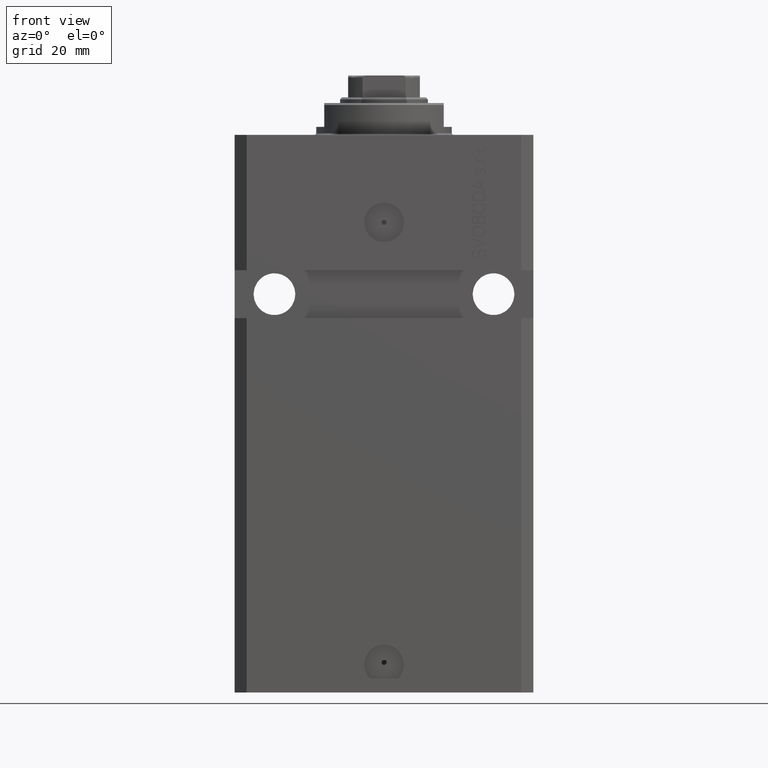
[diagram: clean part render]
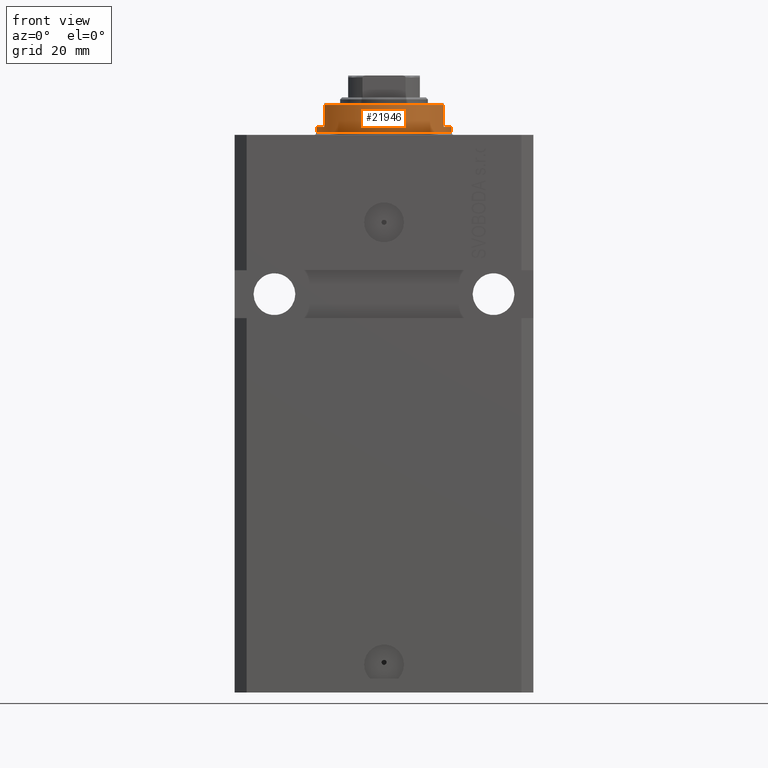
[diagram: same view with one face highlighted and labeled with its STEP entity id]
A machine part, front view. The second image highlights one B-rep face of the part: STEP entity #21946.
In plain terms, the highlighted cylindrical surface (partial cylindrical patch) has radius 17 mm, axis along (0, 0, -1).
Its self-contained STEP definition (entity closure, byte-faithful):
#4 = CIRCLE ( 'NONE', #20659, 17.00000000000000000 ) ;
#234 = CARTESIAN_POINT ( 'NONE',  ( -17.00000000000000000, 2.081899558550500280E-15, -2.000000000000000000 ) ) ;
#338 = EDGE_CURVE ( 'NONE', #26226, #4393, #31575, .T. ) ;
#390 = CARTESIAN_POINT ( 'NONE',  ( 15.00000000000000000, -8.000000000000001776, -8.000000000000000000 ) ) ;
#1102 = CYLINDRICAL_SURFACE ( 'NONE', #26508, 17.00000000000000000 ) ;
#2902 = CARTESIAN_POINT ( 'NONE',  ( 17.00000000000000000, 0.000000000000000000, -2.000000000000000000 ) ) ;
#3434 = LINE ( 'NONE', #43696, #46868 ) ;
#3688 = VECTOR ( 'NONE', #23831, 1000.000000000000000 ) ;
#4393 = VERTEX_POINT ( 'NONE', #33672 ) ;
#4629 = CARTESIAN_POINT ( 'NONE',  ( -15.00000000000000000, -8.000000000000001776, -7.500000000000014211 ) ) ;
#5411 = CARTESIAN_POINT ( 'NONE',  ( 0.000000000000000000, 0.000000000000000000, -8.000000000000000000 ) ) ;
#5618 = CARTESIAN_POINT ( 'NONE',  ( -17.00000000000000000, 2.081899558550500280E-15, -8.000000000000000000 ) ) ;
#5701 = CARTESIAN_POINT ( 'NONE',  ( 14.99999999999999645, -8.000000000000003553, -2.000000000000000000 ) ) ;
#8450 = DIRECTION ( 'NONE',  ( 0.000000000000000000, 0.000000000000000000, -1.000000000000000000 ) ) ;
#9440 = EDGE_CURVE ( 'NONE', #27437, #12922, #3434, .T. ) ;
#9653 = DIRECTION ( 'NONE',  ( 1.000000000000000000, 0.000000000000000000, 0.000000000000000000 ) ) ;
#10027 = ORIENTED_EDGE ( 'NONE', *, *, #21210, .F. ) ;
#10770 = DIRECTION ( 'NONE',  ( 0.000000000000000000, 0.000000000000000000, 1.000000000000000000 ) ) ;
#12866 = CIRCLE ( 'NONE', #18970, 17.00000000000000000 ) ;
#12899 = CARTESIAN_POINT ( 'NONE',  ( -14.99999999999999645, -8.000000000000003553, -2.000000000000000000 ) ) ;
#12922 = VERTEX_POINT ( 'NONE', #4629 ) ;
#14373 = EDGE_CURVE ( 'NONE', #4393, #42768, #21774, .T. ) ;
#14760 = LINE ( 'NONE', #390, #45706 ) ;
#15586 = DIRECTION ( 'NONE',  ( 0.000000000000000000, 0.000000000000000000, -1.000000000000000000 ) ) ;
#16775 = EDGE_LOOP ( 'NONE', ( #38822, #40264, #33735, #37816, #22381, #10027, #35232, #27226 ) ) ;
#17067 = CARTESIAN_POINT ( 'NONE',  ( 15.00000000000000000, -8.000000000000001776, -7.500000000000013323 ) ) ;
#17412 = DIRECTION ( 'NONE',  ( -0.000000000000000000, -0.000000000000000000, 1.000000000000000000 ) ) ;
#17711 = DIRECTION ( 'NONE',  ( -1.000000000000000000, 0.000000000000000000, 0.000000000000000000 ) ) ;
#17983 = VERTEX_POINT ( 'NONE', #234 ) ;
#18014 = CARTESIAN_POINT ( 'NONE',  ( 0.000000000000000000, 0.000000000000000000, -0.5000000000000004441 ) ) ;
#18740 = AXIS2_PLACEMENT_3D ( 'NONE', #18014, #32648, #9653 ) ;
#18970 = AXIS2_PLACEMENT_3D ( 'NONE', #30690, #45515, #38369 ) ;
#20659 = AXIS2_PLACEMENT_3D ( 'NONE', #43825, #10770, #17711 ) ;
#21066 = VECTOR ( 'NONE', #17412, 1000.000000000000000 ) ;
#21210 = EDGE_CURVE ( 'NONE', #26226, #46511, #39555, .T. ) ;
#21774 = CIRCLE ( 'NONE', #18740, 17.00000000000000000 ) ;
#21946 = ADVANCED_FACE ( 'NONE', ( #41611 ), #1102, .T. ) ;
#22275 = VERTEX_POINT ( 'NONE', #17067 ) ;
#22381 = ORIENTED_EDGE ( 'NONE', *, *, #22724, .F. ) ;
#22533 = CARTESIAN_POINT ( 'NONE',  ( 0.000000000000000000, 0.000000000000000000, -2.000000000000000000 ) ) ;
#22724 = EDGE_CURVE ( 'NONE', #46511, #22275, #14760, .T. ) ;
#23831 = DIRECTION ( 'NONE',  ( -0.000000000000000000, -0.000000000000000000, 1.000000000000000000 ) ) ;
#23981 = CARTESIAN_POINT ( 'NONE',  ( -17.00000000000000000, 2.081899558550500280E-15, -0.5000000000000004441 ) ) ;
#26226 = VERTEX_POINT ( 'NONE', #2902 ) ;
#26508 = AXIS2_PLACEMENT_3D ( 'NONE', #5411, #38020, #44946 ) ;
#27226 = ORIENTED_EDGE ( 'NONE', *, *, #14373, .T. ) ;
#27437 = VERTEX_POINT ( 'NONE', #12899 ) ;
#30401 = EDGE_CURVE ( 'NONE', #12922, #22275, #4, .T. ) ;
#30690 = CARTESIAN_POINT ( 'NONE',  ( 0.000000000000000000, 0.000000000000000000, -2.000000000000000000 ) ) ;
#31575 = LINE ( 'NONE', #39474, #21066 ) ;
#32213 = LINE ( 'NONE', #5618, #3688 ) ;
#32648 = DIRECTION ( 'NONE',  ( -0.000000000000000000, -0.000000000000000000, -1.000000000000000000 ) ) ;
#33672 = CARTESIAN_POINT ( 'NONE',  ( 17.00000000000000000, 0.000000000000000000, -0.5000000000000004441 ) ) ;
#33735 = ORIENTED_EDGE ( 'NONE', *, *, #9440, .T. ) ;
#35232 = ORIENTED_EDGE ( 'NONE', *, *, #338, .T. ) ;
#37180 = DIRECTION ( 'NONE',  ( -1.000000000000000000, 0.000000000000000000, 0.000000000000000000 ) ) ;
#37816 = ORIENTED_EDGE ( 'NONE', *, *, #30401, .T. ) ;
#38020 = DIRECTION ( 'NONE',  ( -0.000000000000000000, -0.000000000000000000, 1.000000000000000000 ) ) ;
#38338 = EDGE_CURVE ( 'NONE', #27437, #17983, #12866, .T. ) ;
#38369 = DIRECTION ( 'NONE',  ( -1.000000000000000000, 0.000000000000000000, 0.000000000000000000 ) ) ;
#38822 = ORIENTED_EDGE ( 'NONE', *, *, #38972, .F. ) ;
#38972 = EDGE_CURVE ( 'NONE', #17983, #42768, #32213, .T. ) ;
#39474 = CARTESIAN_POINT ( 'NONE',  ( 17.00000000000000000, 0.000000000000000000, -8.000000000000000000 ) ) ;
#39555 = CIRCLE ( 'NONE', #43349, 17.00000000000000000 ) ;
#40264 = ORIENTED_EDGE ( 'NONE', *, *, #38338, .F. ) ;
#41137 = DIRECTION ( 'NONE',  ( 0.000000000000000000, 0.000000000000000000, -1.000000000000000000 ) ) ;
#41611 = FACE_OUTER_BOUND ( 'NONE', #16775, .T. ) ;
#42768 = VERTEX_POINT ( 'NONE', #23981 ) ;
#43349 = AXIS2_PLACEMENT_3D ( 'NONE', #22533, #15586, #37180 ) ;
#43696 = CARTESIAN_POINT ( 'NONE',  ( -15.00000000000000000, -8.000000000000001776, -8.000000000000000000 ) ) ;
#43825 = CARTESIAN_POINT ( 'NONE',  ( 0.000000000000000000, 0.000000000000000000, -7.500000000000013323 ) ) ;
#44946 = DIRECTION ( 'NONE',  ( 1.000000000000000000, 0.000000000000000000, 0.000000000000000000 ) ) ;
#45515 = DIRECTION ( 'NONE',  ( 0.000000000000000000, 0.000000000000000000, -1.000000000000000000 ) ) ;
#45706 = VECTOR ( 'NONE', #41137, 1000.000000000000000 ) ;
#46511 = VERTEX_POINT ( 'NONE', #5701 ) ;
#46868 = VECTOR ( 'NONE', #8450, 1000.000000000000000 ) ;